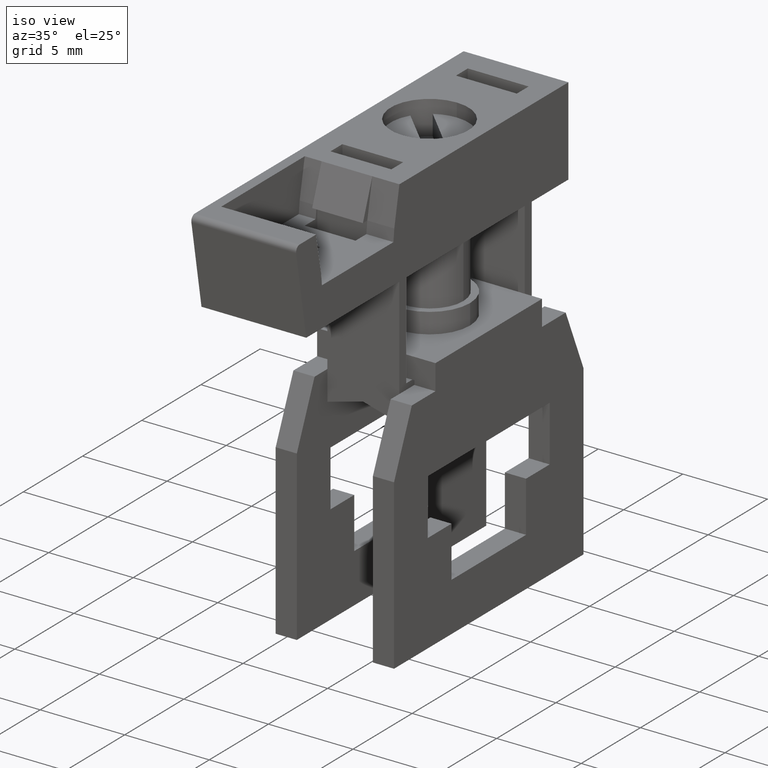
[diagram: clean part render]
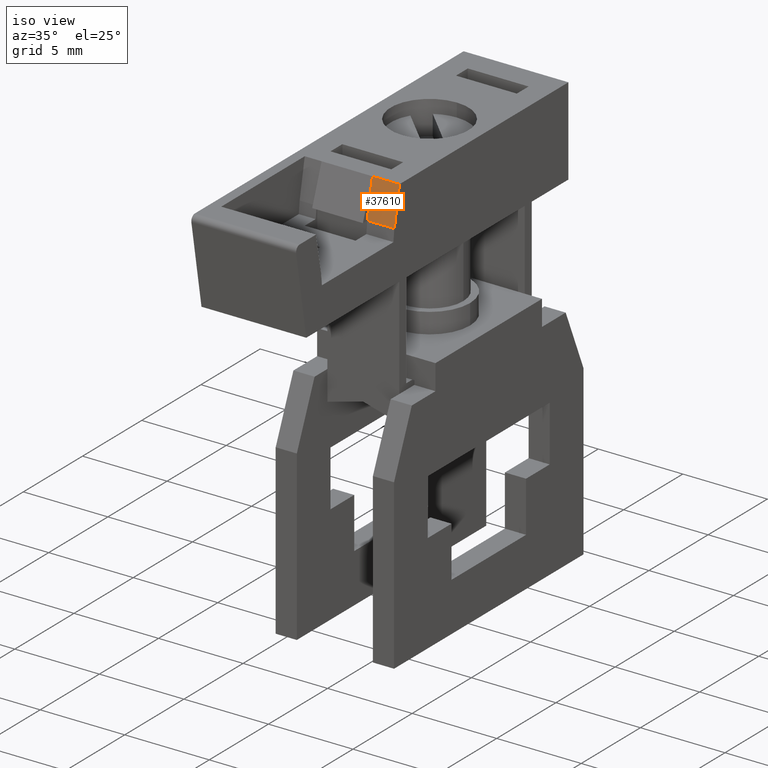
[diagram: same view with one face highlighted and labeled with its STEP entity id]
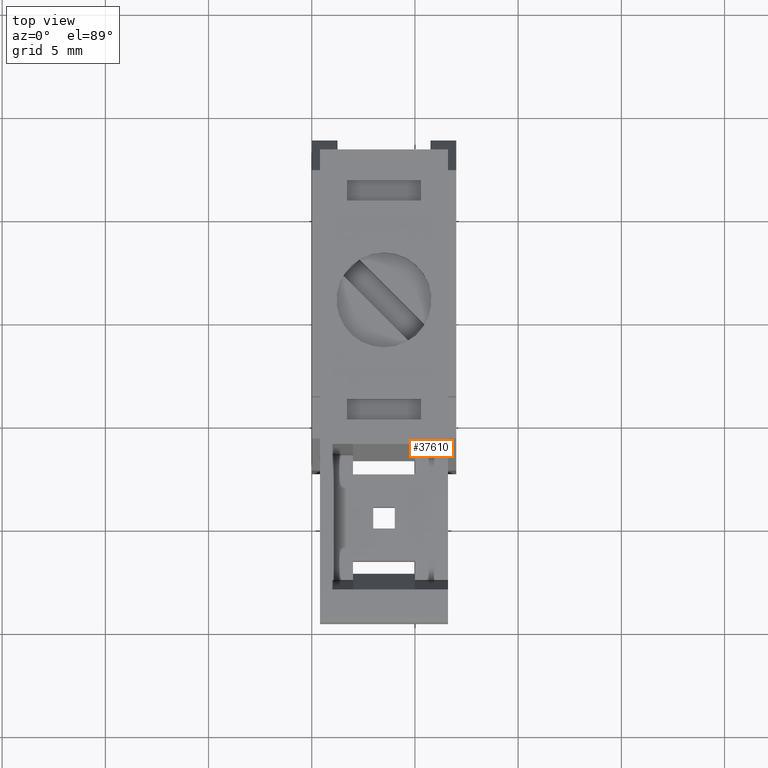
[diagram: same view with one face highlighted and labeled with its STEP entity id]
A machine part, iso view. The second image highlights one B-rep face of the part: STEP entity #37610.
A second angle (top view) of the same face is appended — the face is thin or edge-on in the first view.
In plain terms, the highlighted planar face has unit normal (-0, -0.9813, 0.1926).
Its self-contained STEP definition (entity closure, byte-faithful):
#100=CARTESIAN_POINT('',(-0.400000000000001,28.7,15.4058136949395));
#110=VERTEX_POINT('',#100);
#160=CARTESIAN_POINT('',(-0.400000000000001,1.8,20.6847059148044));
#170=DIRECTION('',(-2.77555756156289E-17,0.981283551889514,
-0.192568405485166));
#180=VECTOR('',#170,1.);
#190=LINE('',#160,#180);
#200=CARTESIAN_POINT('',(-0.400000000000001,30.9,14.9740827327201));
#210=VERTEX_POINT('',#200);
#220=EDGE_CURVE('',#110,#210,#190,.T.);
#4590=CARTESIAN_POINT('',(-2.,28.7,15.4058136949395));
#4600=VERTEX_POINT('',#4590);
#4630=CARTESIAN_POINT('',(0.,28.7,15.4058136949395));
#4640=DIRECTION('',(-1.,0.,6.12323399573677E-17));
#4650=VECTOR('',#4640,1.);
#4660=LINE('',#4630,#4650);
#4670=EDGE_CURVE('',#110,#4600,#4660,.T.);
#5950=CARTESIAN_POINT('',(-2.,30.9,14.9740827327201));
#5960=VERTEX_POINT('',#5950);
#7110=CARTESIAN_POINT('',(0.,30.9,14.9740827327201));
#7120=DIRECTION('',(1.,0.,-6.12323399573676E-17));
#7130=VECTOR('',#7120,1.);
#7140=LINE('',#7110,#7130);
#7150=EDGE_CURVE('',#5960,#210,#7140,.T.);
#37450=CARTESIAN_POINT('',(-0.400000000000002,30.9,14.9740827327201));
#37460=DIRECTION('',(6.0086288043872E-17,0.192568405485166,
0.981283551889514));
#37470=DIRECTION('',(-1.17914140697159E-17,0.981283551889514,
-0.192568405485166));
#37480=AXIS2_PLACEMENT_3D('',#37450,#37460,#37470);
#37490=PLANE('',#37480);
#37500=ORIENTED_EDGE('',*,*,#4670,.F.);
#37510=CARTESIAN_POINT('',(-2.,31.9,14.7778413862567));
#37520=DIRECTION('',(1.17914140697159E-17,-0.981283551889514,
0.192568405485166));
#37530=VECTOR('',#37520,1.);
#37540=LINE('',#37510,#37530);
#37550=EDGE_CURVE('',#5960,#4600,#37540,.T.);
#37560=ORIENTED_EDGE('',*,*,#37550,.T.);
#37570=ORIENTED_EDGE('',*,*,#7150,.F.);
#37580=ORIENTED_EDGE('',*,*,#220,.T.);
#37590=EDGE_LOOP('',(#37580,#37570,#37560,#37500));
#37600=FACE_OUTER_BOUND('',#37590,.T.);
#37610=ADVANCED_FACE('',(#37600),#37490,.T.);